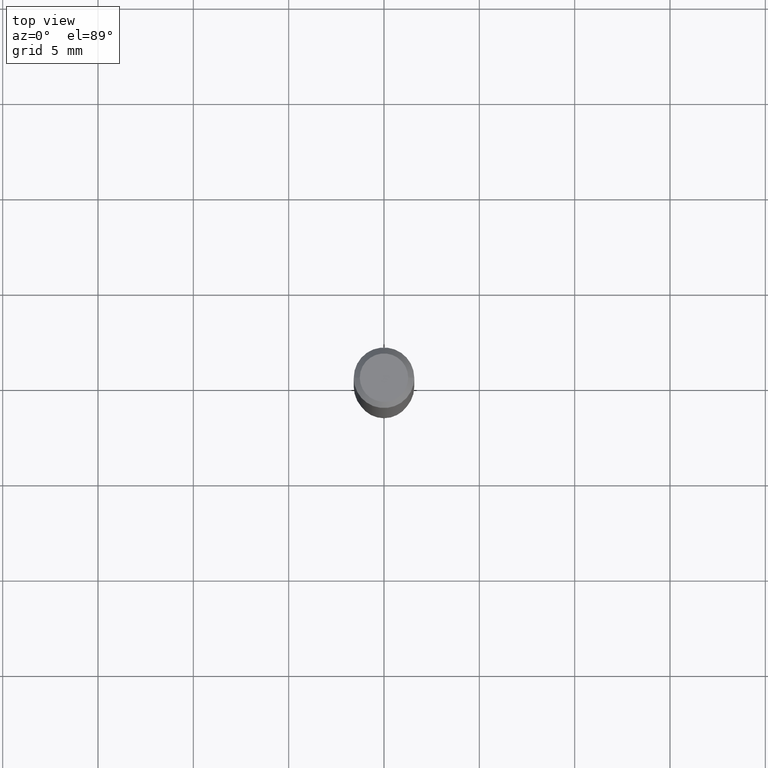
[diagram: clean part render]
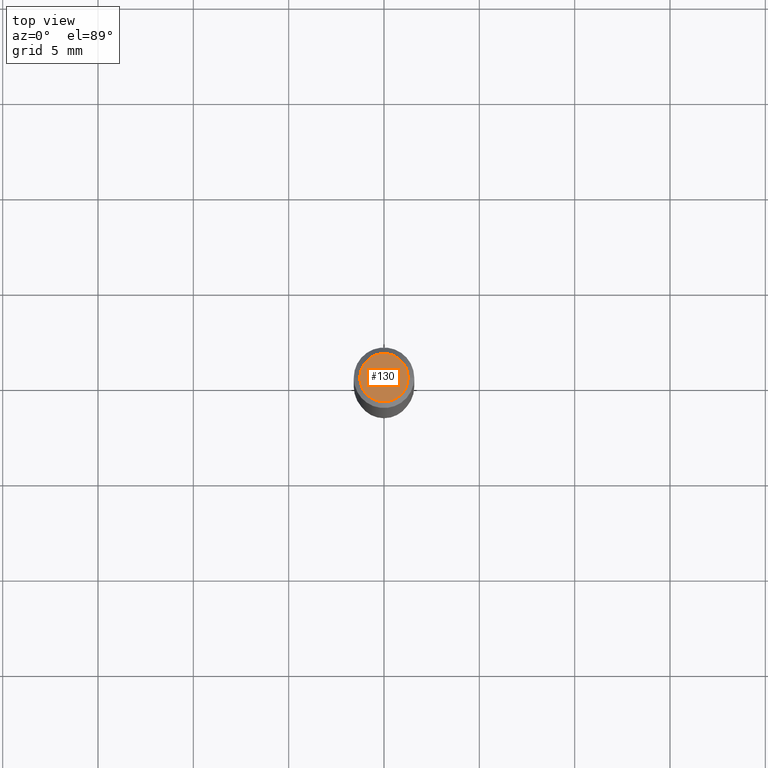
[diagram: same view with one face highlighted and labeled with its STEP entity id]
A machine part, top view. The second image highlights one B-rep face of the part: STEP entity #130.
In plain terms, the highlighted planar face has unit normal (0, -0, -1).
Its self-contained STEP definition (entity closure, byte-faithful):
#54 = DIRECTION ( 'NONE',  ( 2.438088387897960049E-29, -3.491481338843145188E-15, -1.000000000000000000 ) ) ;
#67 = AXIS2_PLACEMENT_3D ( 'NONE', #159, #306, #419 ) ;
#120 = VERTEX_POINT ( 'NONE', #394 ) ;
#130 = ADVANCED_FACE ( 'NONE', ( #161 ), #428, .F. ) ;
#140 = CIRCLE ( 'NONE', #67, 0.04999999999999999584 ) ;
#146 = CARTESIAN_POINT ( 'NONE',  ( 0.04999999999999999584, -4.077247707424184212E-16, -1.592040838888913461E-18 ) ) ;
#159 = CARTESIAN_POINT ( 'NONE',  ( 3.893286209682126177E-47, -5.558580879666067980E-33, -1.592040838891559689E-18 ) ) ;
#161 = FACE_OUTER_BOUND ( 'NONE', #391, .T. ) ;
#191 = ORIENTED_EDGE ( 'NONE', *, *, #435, .T. ) ;
#223 = DIRECTION ( 'NONE',  ( 1.000000000000000000, -6.982962677686265922E-15, 4.875957971899673662E-29 ) ) ;
#224 = AXIS2_PLACEMENT_3D ( 'NONE', #261, #411, #223 ) ;
#243 = CARTESIAN_POINT ( 'NONE',  ( 1.946643104841063088E-47, -2.779290439833033990E-33, -7.960204194457798443E-19 ) ) ;
#261 = CARTESIAN_POINT ( 'NONE',  ( 3.893286209682126177E-47, -5.558580879666067980E-33, -1.592040838891559689E-18 ) ) ;
#306 = DIRECTION ( 'NONE',  ( -2.445468806185136597E-29, 3.491481338843145583E-15, 1.000000000000000000 ) ) ;
#324 = DIRECTION ( 'NONE',  ( -1.000000000000000000, 6.982962677686265922E-15, -4.876176775795935793E-29 ) ) ;
#336 = VERTEX_POINT ( 'NONE', #146 ) ;
#340 = EDGE_CURVE ( 'NONE', #120, #336, #344, .T. ) ;
#344 = CIRCLE ( 'NONE', #224, 0.04999999999999999584 ) ;
#391 = EDGE_LOOP ( 'NONE', ( #459, #191 ) ) ;
#394 = CARTESIAN_POINT ( 'NONE',  ( -0.04999999999999999584, 3.709698922520826725E-16, -1.592040838894077649E-18 ) ) ;
#405 = AXIS2_PLACEMENT_3D ( 'NONE', #243, #54, #324 ) ;
#411 = DIRECTION ( 'NONE',  ( -2.445468806185136597E-29, 3.491481338843145583E-15, 1.000000000000000000 ) ) ;
#419 = DIRECTION ( 'NONE',  ( 1.000000000000000000, -6.982962677686265922E-15, 4.875957971899673662E-29 ) ) ;
#428 = PLANE ( 'NONE',  #405 ) ;
#435 = EDGE_CURVE ( 'NONE', #336, #120, #140, .T. ) ;
#459 = ORIENTED_EDGE ( 'NONE', *, *, #340, .T. ) ;